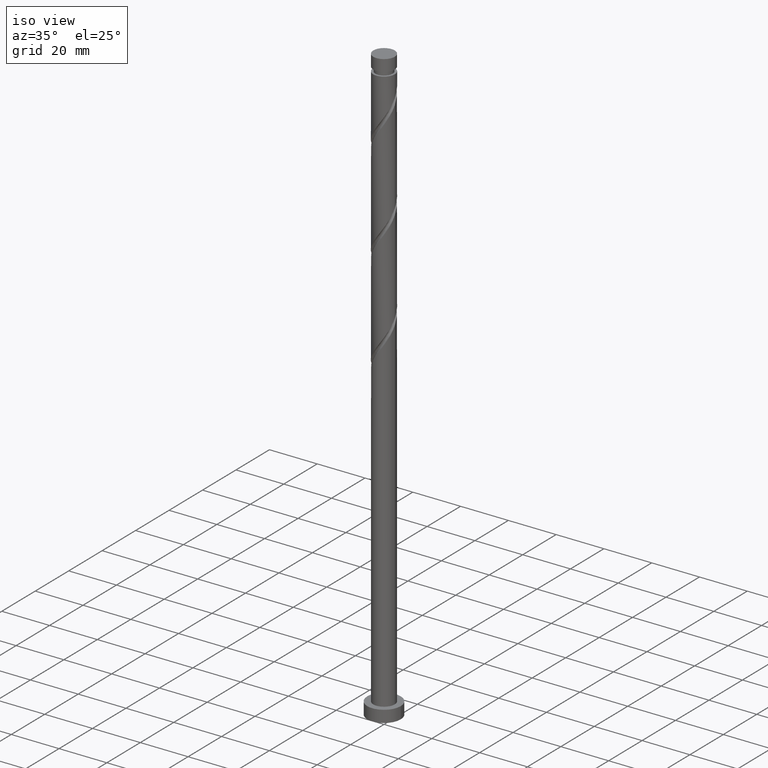
[diagram: clean part render]
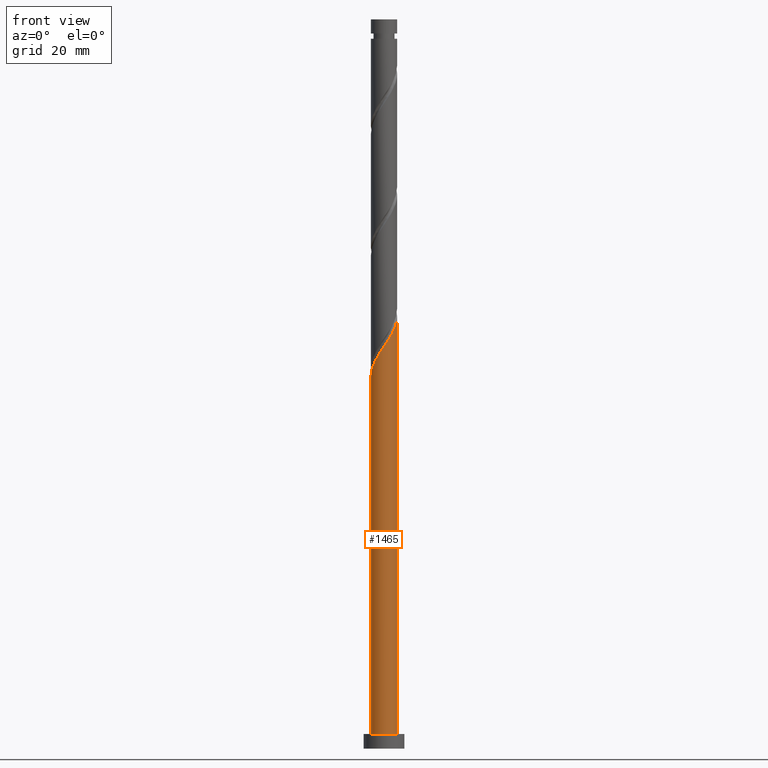
[diagram: tour spotlight — one face highlighted and labeled with its STEP entity id]
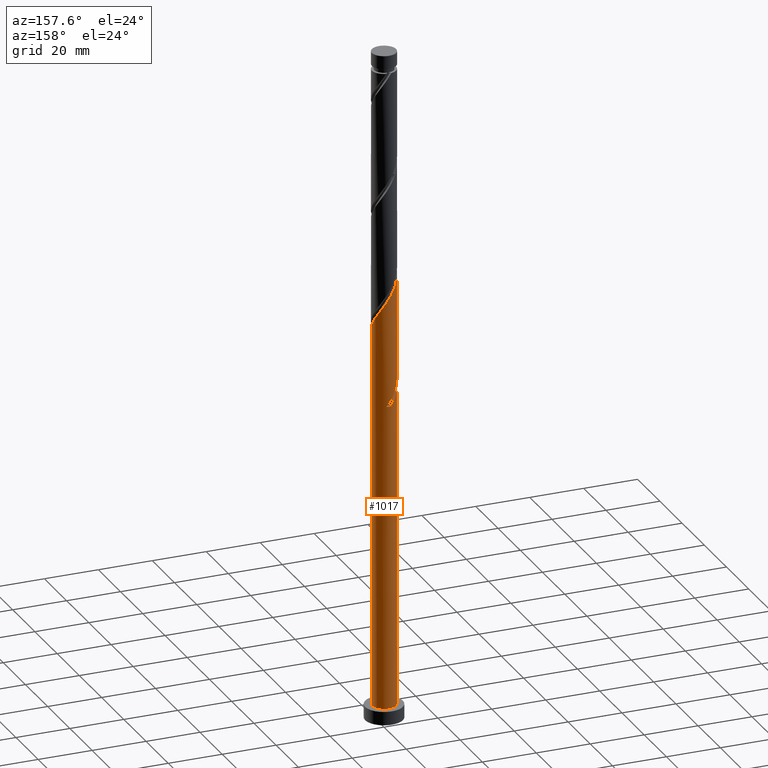
[diagram: tour spotlight — one face highlighted and labeled with its STEP entity id]
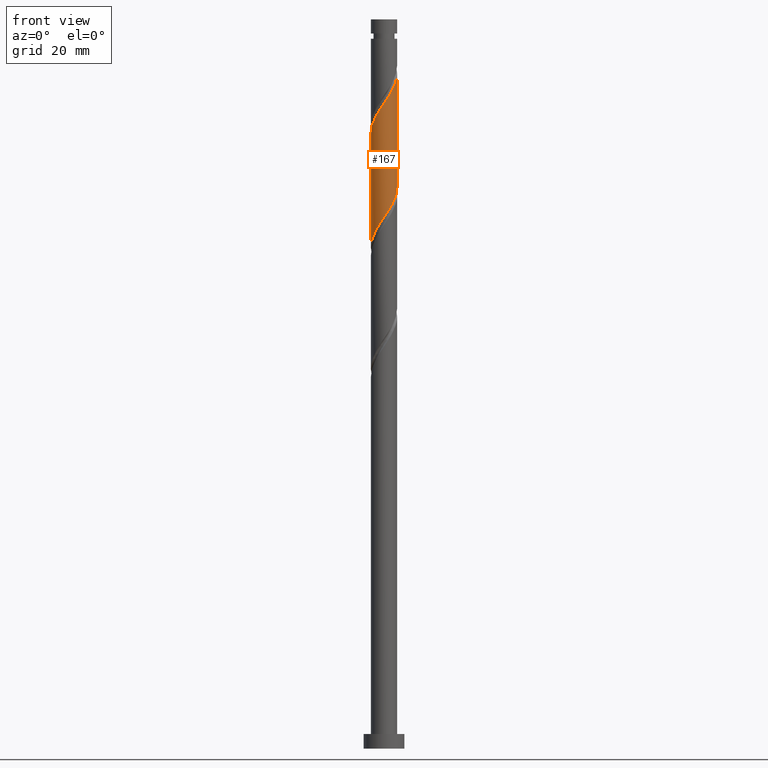
[diagram: tour spotlight — one face highlighted and labeled with its STEP entity id]
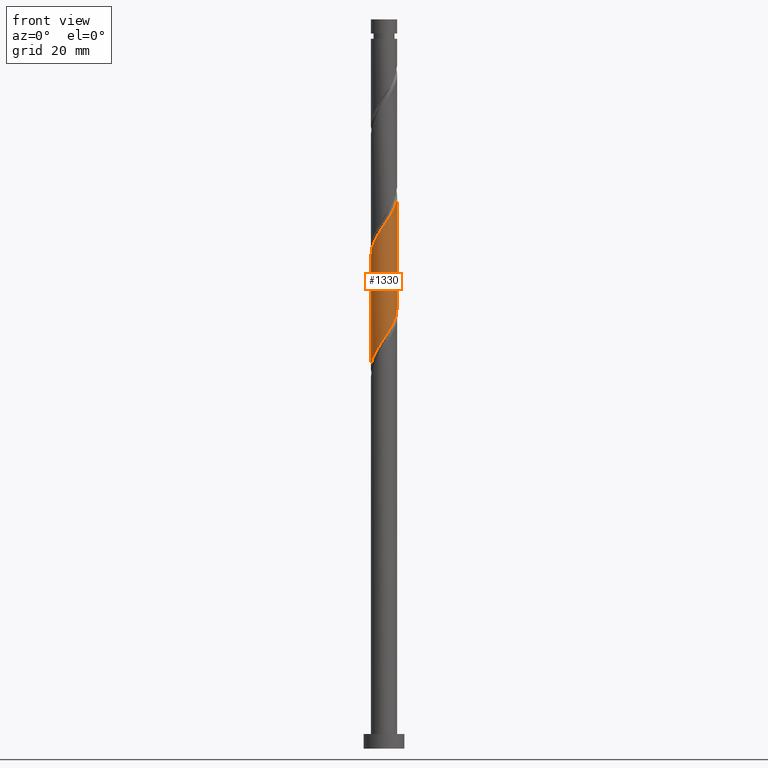
[diagram: tour spotlight — one face highlighted and labeled with its STEP entity id]
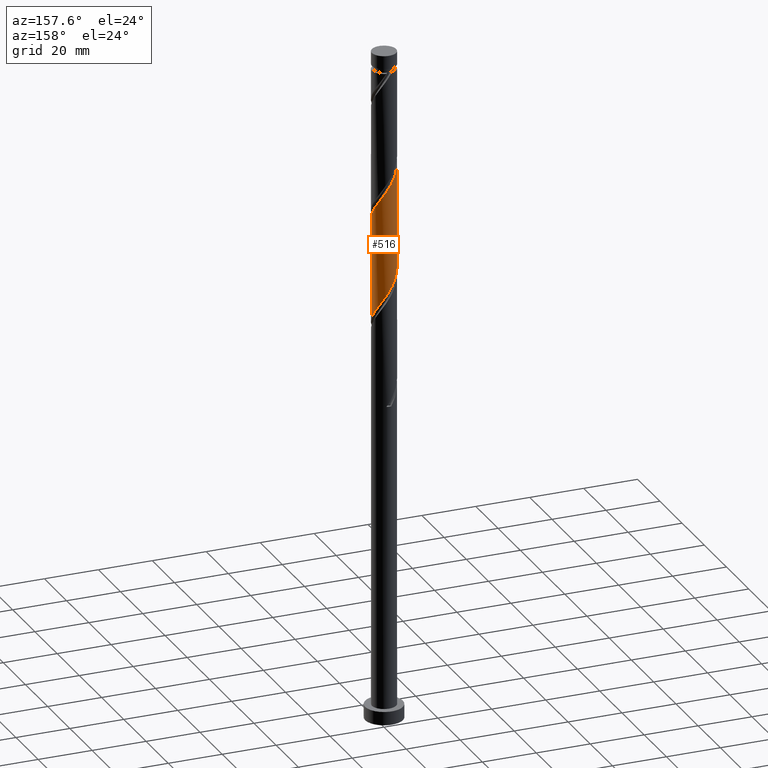
[diagram: tour spotlight — one face highlighted and labeled with its STEP entity id]
A machine part: a face-by-face anatomy tour. The part has 21 B-rep faces; the first image is the clean iso view, then the 5 largest visible faces are spotlighted one at a time (largest first), each with its STEP entity span.

Face 1 — front view, entity #1465. In plain terms, the highlighted cylindrical surface (edge-blend (fillet) strip) has radius 4.5 mm, axis along (-0, -0, -1).
Definition (entity closure, byte-faithful):
#18 = CARTESIAN_POINT ( 'NONE',  ( -4.500000000000007105, -1.839580439594256617E-15, 127.4452234887474020 ) ) ;
#27 = CARTESIAN_POINT ( 'NONE',  ( -3.514330150595356361, -2.863221154104486299, 131.9782735697674809 ) ) ;
#81 = ORIENTED_EDGE ( 'NONE', *, *, #409, .F. ) ;
#159 = DIRECTION ( 'NONE',  ( 1.000000000000000000, 0.000000000000000000, 0.000000000000000000 ) ) ;
#166 = CARTESIAN_POINT ( 'NONE',  ( -4.500000000000007994, -0.1789790865154533284, 127.7093944043803901 ) ) ;
#192 = VECTOR ( 'NONE', #1268, 1000.000000000000000 ) ;
#221 = CARTESIAN_POINT ( 'NONE',  ( -1.256513329241250254, -4.321015419254962353, 135.9846838261777577 ) ) ;
#245 = ORIENTED_EDGE ( 'NONE', *, *, #1542, .T. ) ;
#321 = EDGE_CURVE ( 'NONE', #623, #489, #932, .T. ) ;
#385 = CARTESIAN_POINT ( 'NONE',  ( 4.352751881241021970, -1.265742013621952600, 146.4013504928444434 ) ) ;
#409 = EDGE_CURVE ( 'NONE', #489, #1118, #651, .T. ) ;
#440 = CARTESIAN_POINT ( 'NONE',  ( -4.097423775950929326, -1.938986896543407168, 130.3757094672033929 ) ) ;
#489 = VERTEX_POINT ( 'NONE', #567 ) ;
#526 = CARTESIAN_POINT ( 'NONE',  ( -1.781179590981155192, -4.168447078873283473, 135.1834017748956853 ) ) ;
#532 = CARTESIAN_POINT ( 'NONE',  ( 0.8954886933959596007, -4.410000000000006359, 139.1898120313059621 ) ) ;
#541 = CIRCLE ( 'NONE', #1384, 4.500000000000000888 ) ;
#554 = CARTESIAN_POINT ( 'NONE',  ( -4.442390024977666663, -0.9020657684858256475, 128.7731453646392765 ) ) ;
#567 = CARTESIAN_POINT ( 'NONE',  ( 4.500000000000007105, 1.271254775329364443E-15, 148.2785568220807306 ) ) ;
#623 = VERTEX_POINT ( 'NONE', #1034 ) ;
#633 = VECTOR ( 'NONE', #1788, 1000.000000000000000 ) ;
#651 = LINE ( 'NONE', #660, #633 ) ;
#660 = CARTESIAN_POINT ( 'NONE',  ( 4.500000000000000888, 5.510910596163089556E-16, 250.0000000000000000 ) ) ;
#673 = CYLINDRICAL_SURFACE ( 'NONE', #1265, 4.500000000000000888 ) ;
#675 = CARTESIAN_POINT ( 'NONE',  ( 2.418739358510839654, -3.833829899758932402, 141.5936581851520941 ) ) ;
#678 = ORIENTED_EDGE ( 'NONE', *, *, #321, .F. ) ;
#688 = DIRECTION ( 'NONE',  ( -1.000000000000000000, 0.000000000000000000, 0.000000000000000000 ) ) ;
#760 = CARTESIAN_POINT ( 'NONE',  ( 0.000000000000000000, 0.000000000000000000, 5.000000000000000000 ) ) ;
#769 = CARTESIAN_POINT ( 'NONE',  ( 4.500000000000005329, -0.3656539734167192357, 147.7388560847323902 ) ) ;
#777 = CARTESIAN_POINT ( 'NONE',  ( 2.842345048184794720, -3.488706727006361419, 142.3949402364341381 ) ) ;
#796 = CARTESIAN_POINT ( 'NONE',  ( 4.440966297212226799, -0.7265110783912239745, 147.2026325441264589 ) ) ;
#808 = CARTESIAN_POINT ( 'NONE',  ( 1.924849498958484562, -4.067548943326846356, 140.7923761338700501 ) ) ;
#847 = CARTESIAN_POINT ( 'NONE',  ( -4.500000000000000888, 0.000000000000000000, 250.0000000000000000 ) ) ;
#867 = CARTESIAN_POINT ( 'NONE',  ( -3.120663290776442000, -3.242138279839466897, 132.7795556210495533 ) ) ;
#932 =( BOUNDED_CURVE ( )  B_SPLINE_CURVE ( 2, ( #18, #166, #1825, #554, #1710, #440, #1100, #27, #867, #1733, #1568, #526, #221, #1075, #1345, #1492, #532, #939, #808, #675, #777, #1216, #1642, #1353, #1368, #385, #796, #769, #1231 ),
 .UNSPECIFIED., .F., .T. ) 
 B_SPLINE_CURVE_WITH_KNOTS ( ( 3, 2, 2, 2, 2, 2, 2, 2, 2, 2, 2, 2, 2, 2, 3 ),
 ( 0.05452716259738325105, 0.05769230769230770939, 0.06730769230769229061, 0.07692307692307687184, 0.08653846153846156408, 0.09615384615384614531, 0.1057692307692307265, 0.1153846153846154188, 0.1250000000000000000, 0.1346153846153845812, 0.1442307692307692735, 0.1538461538461538547, 0.1634615384615384359, 0.1730769230769231282, 0.1795271625973830776 ),
 .UNSPECIFIED. ) 
 CURVE ( )  GEOMETRIC_REPRESENTATION_ITEM ( )  RATIONAL_B_SPLINE_CURVE ( ( 0.9061636035682857360, 0.9069090390690743853, 0.9090909090909310430, 0.9024626128164345840, 0.9090909090909310430, 0.9024626128164345840, 0.9090909090909310430, 0.9024626128164345840, 0.9090909090909310430, 0.9024626128164345840, 0.9090909090909310430, 0.9024626128164345840, 0.9090909090909310430, 0.9024626128164345840, 0.9090909090909310430, 0.9024626128164345840, 0.9090909090909310430, 0.9024626128164345840, 0.9090909090909310430, 0.9024626128164345840, 0.9090909090909310430, 0.9024626128164345840, 0.9090909090909310430, 0.9024626128164345840, 0.9090909090909310430, 0.9024626128164345840, 0.9090909090909310430, 0.9046444828382912418, 0.9061636035682857360 ) ) 
 REPRESENTATION_ITEM ( '' )  );
#939 = CARTESIAN_POINT ( 'NONE',  ( 1.430959639406128803, -4.301267986894758089, 139.9910940825879777 ) ) ;
#1034 = CARTESIAN_POINT ( 'NONE',  ( -4.500000000000007105, -1.839580439594256617E-15, 127.4452234887474020 ) ) ;
#1075 = CARTESIAN_POINT ( 'NONE',  ( -0.7318470675013459825, -4.473583759636639456, 136.7859658774597733 ) ) ;
#1098 = DIRECTION ( 'NONE',  ( -0.000000000000000000, -0.000000000000000000, -1.000000000000000000 ) ) ;
#1100 = CARTESIAN_POINT ( 'NONE',  ( -3.805876963273143510, -2.401104025323945734, 131.1769915184854369 ) ) ;
#1118 = VERTEX_POINT ( 'NONE', #1164 ) ;
#1164 = CARTESIAN_POINT ( 'NONE',  ( 4.500000000000000888, 5.510910596163089556E-16, 5.000000000000000000 ) ) ;
#1216 = CARTESIAN_POINT ( 'NONE',  ( 3.265950737858748010, -3.143583554253793544, 143.1962222877161821 ) ) ;
#1228 = CARTESIAN_POINT ( 'NONE',  ( 0.000000000000000000, 0.000000000000000000, 250.0000000000000000 ) ) ;
#1231 = CARTESIAN_POINT ( 'NONE',  ( 4.500000000000007105, 1.271254775329364443E-15, 148.2785568220807022 ) ) ;
#1234 = EDGE_LOOP ( 'NONE', ( #81, #678, #1603, #245 ) ) ;
#1265 = AXIS2_PLACEMENT_3D ( 'NONE', #1228, #1098, #688 ) ;
#1268 = DIRECTION ( 'NONE',  ( -0.000000000000000000, -0.000000000000000000, -1.000000000000000000 ) ) ;
#1293 = LINE ( 'NONE', #847, #192 ) ;
#1345 = CARTESIAN_POINT ( 'NONE',  ( -0.1859146600577789021, -4.496157886370947487, 137.5872479287418173 ) ) ;
#1353 = CARTESIAN_POINT ( 'NONE',  ( 3.923356931570217920, -2.270643559036720216, 144.7987863902802701 ) ) ;
#1364 = EDGE_CURVE ( 'NONE', #623, #1704, #1293, .T. ) ;
#1368 = CARTESIAN_POINT ( 'NONE',  ( 4.138054406405619723, -1.768192786329335187, 145.6000684415623709 ) ) ;
#1372 = FACE_OUTER_BOUND ( 'NONE', #1234, .T. ) ;
#1384 = AXIS2_PLACEMENT_3D ( 'NONE', #760, #1735, #159 ) ;
#1465 = ADVANCED_FACE ( 'NONE', ( #1372 ), #673, .T. ) ;
#1492 = CARTESIAN_POINT ( 'NONE',  ( 0.3600177473857882893, -4.518732013105255518, 138.3885299800238897 ) ) ;
#1542 = EDGE_CURVE ( 'NONE', #1704, #1118, #541, .T. ) ;
#1543 = CARTESIAN_POINT ( 'NONE',  ( -4.500000000000000888, 0.000000000000000000, 5.000000000000000000 ) ) ;
#1568 = CARTESIAN_POINT ( 'NONE',  ( -2.254088010969340861, -3.894751242223867038, 134.3821197236136129 ) ) ;
#1603 = ORIENTED_EDGE ( 'NONE', *, *, #1364, .T. ) ;
#1642 = CARTESIAN_POINT ( 'NONE',  ( 3.594653834714482521, -2.707113556645257546, 143.9975043389982829 ) ) ;
#1704 = VERTEX_POINT ( 'NONE', #1543 ) ;
#1710 = CARTESIAN_POINT ( 'NONE',  ( -4.269906900464299326, -1.420526332514616241, 129.5744274159213489 ) ) ;
#1733 = CARTESIAN_POINT ( 'NONE',  ( -2.726996430957525863, -3.621055405574447938, 133.5808376723315689 ) ) ;
#1735 = DIRECTION ( 'NONE',  ( 0.000000000000000000, 0.000000000000000000, 1.000000000000000000 ) ) ;
#1788 = DIRECTION ( 'NONE',  ( -0.000000000000000000, -0.000000000000000000, -1.000000000000000000 ) ) ;
#1825 = CARTESIAN_POINT ( 'NONE',  ( -4.485785369080550922, -0.3573928126626647606, 127.9718633133572752 ) ) ;

Face 2 — auxiliary view, entity #1017. In plain terms, the highlighted cylindrical surface (edge-blend (fillet) strip) has radius 4.5 mm, axis along (-0, -0, -1).
Definition (entity closure, byte-faithful):
#6 = EDGE_LOOP ( 'NONE', ( #887, #88, #1799, #325, #465, #375, #535, #838 ) ) ;
#20 = CARTESIAN_POINT ( 'NONE',  ( 0.000000000000000000, 0.000000000000000000, 5.000000000000000000 ) ) ;
#30 = EDGE_CURVE ( 'NONE', #127, #929, #65, .T. ) ;
#59 = CARTESIAN_POINT ( 'NONE',  ( -4.097423775950922220, 1.938986896543404725, 127.1705812620752027 ) ) ;
#62 = CARTESIAN_POINT ( 'NONE',  ( 0.1859146600577813724, 4.496157886370947487, 158.4205812620751885 ) ) ;
#65 = CIRCLE ( 'NONE', #906, 4.500000000000000888 ) ;
#88 = ORIENTED_EDGE ( 'NONE', *, *, #409, .T. ) ;
#127 = VERTEX_POINT ( 'NONE', #857 ) ;
#151 = DIRECTION ( 'NONE',  ( 0.000000000000000000, 1.000000000000000000, -2.467162276944791751E-14 ) ) ;
#152 = DIRECTION ( 'NONE',  ( -0.000000000000000000, -0.000000000000000000, -1.000000000000000000 ) ) ;
#168 = CARTESIAN_POINT ( 'NONE',  ( -0.8954886933959587125, 4.410000000000006359, 118.3564786979726051 ) ) ;
#192 = VECTOR ( 'NONE', #1268, 1000.000000000000000 ) ;
#194 = CARTESIAN_POINT ( 'NONE',  ( -1.430959639406130135, 4.301267986894758089, 119.1577607492546775 ) ) ;
#196 = CARTESIAN_POINT ( 'NONE',  ( 4.500000000000007105, 1.271254775329364443E-15, 148.2785568220807022 ) ) ;
#204 = CARTESIAN_POINT ( 'NONE',  ( -4.440966297212226799, 0.7265110783912233083, 168.0359658774598017 ) ) ;
#212 = CARTESIAN_POINT ( 'NONE',  ( 4.442390024977666663, 0.9020657684858252034, 149.6064786979726193 ) ) ;
#267 = CIRCLE ( 'NONE', #892, 4.500000000000000888 ) ;
#275 = DIRECTION ( 'NONE',  ( -0.000000000000000000, -0.000000000000000000, -1.000000000000000000 ) ) ;
#307 = CARTESIAN_POINT ( 'NONE',  ( -1.924849498958485672, 4.067548943326845468, 119.9590428005367073 ) ) ;
#325 = ORIENTED_EDGE ( 'NONE', *, *, #1364, .F. ) ;
#329 = CARTESIAN_POINT ( 'NONE',  ( -4.500000000000007105, -1.839580439594256617E-15, 169.1118901554140734 ) ) ;
#332 = CARTESIAN_POINT ( 'NONE',  ( -3.514330150595351476, 2.863221154104482302, 125.5680171595110437 ) ) ;
#334 = CARTESIAN_POINT ( 'NONE',  ( 4.485785369080551810, 0.3573928126626632062, 148.8051966466905753 ) ) ;
#356 =( BOUNDED_CURVE ( )  B_SPLINE_CURVE ( 2, ( #196, #359, #334, #212, #1031, #762, #1754, #631, #1619, #1332, #1778, #507, #622, #1182, #62, #1057, #640, #912, #1476, #370, #923, #1460, #488, #1593, #746, #480, #204, #1046, #798 ),
 .UNSPECIFIED., .F., .T. ) 
 B_SPLINE_CURVE_WITH_KNOTS ( ( 3, 2, 2, 2, 2, 2, 2, 2, 2, 2, 2, 2, 2, 2, 3 ),
 ( 0.1795271625973830776, 0.1826923076923077094, 0.1923076923076922906, 0.2019230769230768718, 0.2115384615384615641, 0.2211538461538461453, 0.2307692307692307265, 0.2403846153846154188, 0.2500000000000000000, 0.2596153846153845812, 0.2692307692307692735, 0.2788461538461538547, 0.2884615384615384359, 0.2980769230769231282, 0.3045271625973832164 ),
 .UNSPECIFIED. ) 
 CURVE ( )  GEOMETRIC_REPRESENTATION_ITEM ( )  RATIONAL_B_SPLINE_CURVE ( ( 0.9061636035682857360, 0.9069090390690743853, 0.9090909090909310430, 0.9024626128164345840, 0.9090909090909310430, 0.9024626128164345840, 0.9090909090909310430, 0.9024626128164345840, 0.9090909090909310430, 0.9024626128164345840, 0.9090909090909310430, 0.9024626128164345840, 0.9090909090909310430, 0.9024626128164345840, 0.9090909090909310430, 0.9024626128164345840, 0.9090909090909310430, 0.9024626128164345840, 0.9090909090909310430, 0.9024626128164345840, 0.9090909090909310430, 0.9024626128164345840, 0.9090909090909310430, 0.9024626128164345840, 0.9090909090909310430, 0.9024626128164345840, 0.9090909090909310430, 0.9046444828382911307, 0.9061636035682857360 ) ) 
 REPRESENTATION_ITEM ( '' )  );
#359 = CARTESIAN_POINT ( 'NONE',  ( 4.500000000000008882, 0.1789790865154426425, 148.5427277377136761 ) ) ;
#370 = CARTESIAN_POINT ( 'NONE',  ( -2.418739358510840987, 3.833829899758932402, 162.4269915184854369 ) ) ;
#375 = ORIENTED_EDGE ( 'NONE', *, *, #30, .T. ) ;
#391 = CARTESIAN_POINT ( 'NONE',  ( -4.500000000000007105, -1.839580439594256617E-15, 127.4452234887474020 ) ) ;
#409 = EDGE_CURVE ( 'NONE', #489, #1118, #651, .T. ) ;
#422 = DIRECTION ( 'NONE',  ( -1.369550182675367967E-29, -2.312964634635744160E-14, -1.000000000000000000 ) ) ;
#437 = VERTEX_POINT ( 'NONE', #329 ) ;
#452 = CARTESIAN_POINT ( 'NONE',  ( -3.120663290776435783, 3.242138279839463344, 124.7667351082290423 ) ) ;
#456 = LINE ( 'NONE', #1418, #1302 ) ;
#465 = ORIENTED_EDGE ( 'NONE', *, *, #1162, .F. ) ;
#478 = CARTESIAN_POINT ( 'NONE',  ( -1.781179590981151195, 4.168447078873278144, 122.3628889543828251 ) ) ;
#480 = CARTESIAN_POINT ( 'NONE',  ( -4.352751881241022858, 1.265742013621950157, 167.2346838261777009 ) ) ;
#488 = CARTESIAN_POINT ( 'NONE',  ( -3.594653834714482965, 2.707113556645256658, 164.8308376723315973 ) ) ;
#489 = VERTEX_POINT ( 'NONE', #567 ) ;
#507 = CARTESIAN_POINT ( 'NONE',  ( 1.781179590981155192, 4.168447078873283473, 156.0167351082290281 ) ) ;
#535 = ORIENTED_EDGE ( 'NONE', *, *, #1134, .F. ) ;
#538 = CARTESIAN_POINT ( 'NONE',  ( -4.500000000000006217, 0.3656539734167095212, 126.9055227513991042 ) ) ;
#567 = CARTESIAN_POINT ( 'NONE',  ( 4.500000000000007105, 1.271254775329364443E-15, 148.2785568220807306 ) ) ;
#593 = FACE_OUTER_BOUND ( 'NONE', #6, .T. ) ;
#600 = CARTESIAN_POINT ( 'NONE',  ( -4.500000000000000000, 3.604381186522106517E-15, 130.1010672405311368 ) ) ;
#601 = CARTESIAN_POINT ( 'NONE',  ( -2.726996430957519202, 3.621055405574443942, 123.9654530569469841 ) ) ;
#622 = CARTESIAN_POINT ( 'NONE',  ( 1.256513329241252697, 4.321015419254962353, 156.8180171595110437 ) ) ;
#623 = VERTEX_POINT ( 'NONE', #1034 ) ;
#631 = CARTESIAN_POINT ( 'NONE',  ( 3.514330150595358138, 2.863221154104484523, 152.8116069031007953 ) ) ;
#633 = VECTOR ( 'NONE', #1788, 1000.000000000000000 ) ;
#640 = CARTESIAN_POINT ( 'NONE',  ( -0.8954886933959591566, 4.410000000000006359, 160.0231453646393049 ) ) ;
#651 = LINE ( 'NONE', #660, #633 ) ;
#660 = CARTESIAN_POINT ( 'NONE',  ( 4.500000000000000888, 5.510910596163089556E-16, 250.0000000000000000 ) ) ;
#674 = CARTESIAN_POINT ( 'NONE',  ( -4.440966297212226799, 0.7265110783912233083, 126.3692992107931303 ) ) ;
#689 = CARTESIAN_POINT ( 'NONE',  ( -3.923356931570218809, 2.270643559036719772, 123.9654530569469841 ) ) ;
#700 = DIRECTION ( 'NONE',  ( -1.000000000000000000, 0.000000000000000000, 0.000000000000000000 ) ) ;
#715 = CARTESIAN_POINT ( 'NONE',  ( -2.418739358510840987, 3.833829899758932402, 120.7603248518187655 ) ) ;
#746 = CARTESIAN_POINT ( 'NONE',  ( -4.138054406405619723, 1.768192786329335187, 166.4334017748956853 ) ) ;
#762 = CARTESIAN_POINT ( 'NONE',  ( 4.097423775950930214, 1.938986896543405614, 151.2090428005367357 ) ) ;
#798 = CARTESIAN_POINT ( 'NONE',  ( -4.500000000000007105, -1.839580439594256617E-15, 169.1118901554140734 ) ) ;
#804 = CARTESIAN_POINT ( 'NONE',  ( -3.594653834714482965, 2.707113556645256658, 123.1641710056649401 ) ) ;
#838 = ORIENTED_EDGE ( 'NONE', *, *, #1604, .F. ) ;
#845 = CARTESIAN_POINT ( 'NONE',  ( 0.000000000000000000, 0.000000000000000000, 250.0000000000000000 ) ) ;
#847 = CARTESIAN_POINT ( 'NONE',  ( -4.500000000000000888, 0.000000000000000000, 250.0000000000000000 ) ) ;
#857 = CARTESIAN_POINT ( 'NONE',  ( -0.8954886933959588236, 4.410000000000006359, 118.3564786979726051 ) ) ;
#861 = VERTEX_POINT ( 'NONE', #600 ) ;
#872 = CARTESIAN_POINT ( 'NONE',  ( -2.842345048184795164, 3.488706727006361419, 121.5616069031008664 ) ) ;
#873 = DIRECTION ( 'NONE',  ( 1.000000000000000000, 0.000000000000000000, 0.000000000000000000 ) ) ;
#887 = ORIENTED_EDGE ( 'NONE', *, *, #1806, .F. ) ;
#892 = AXIS2_PLACEMENT_3D ( 'NONE', #20, #1279, #873 ) ;
#906 = AXIS2_PLACEMENT_3D ( 'NONE', #1399, #422, #151 ) ;
#912 = CARTESIAN_POINT ( 'NONE',  ( -1.430959639406130135, 4.301267986894758089, 160.8244274159213774 ) ) ;
#923 = CARTESIAN_POINT ( 'NONE',  ( -2.842345048184795164, 3.488706727006361419, 163.2282735697674809 ) ) ;
#929 = VERTEX_POINT ( 'NONE', #1634 ) ;
#1008 = CARTESIAN_POINT ( 'NONE',  ( -4.500000000000000000, 3.604381186522106517E-15, 130.1010672405311368 ) ) ;
#1017 = ADVANCED_FACE ( 'NONE', ( #593 ), #1721, .T. ) ;
#1028 = CARTESIAN_POINT ( 'NONE',  ( -4.499999999999999112, 0.1789790865154717026, 129.8368963248981913 ) ) ;
#1031 = CARTESIAN_POINT ( 'NONE',  ( 4.269906900464300215, 1.420526332514613799, 150.4077607492546917 ) ) ;
#1034 = CARTESIAN_POINT ( 'NONE',  ( -4.500000000000007105, -1.839580439594256617E-15, 127.4452234887474020 ) ) ;
#1037 = CARTESIAN_POINT ( 'NONE',  ( -1.256513329241247146, 4.321015419254954359, 121.5616069031008379 ) ) ;
#1046 = CARTESIAN_POINT ( 'NONE',  ( -4.500000000000006217, 0.3656539734167115197, 168.5721894180657330 ) ) ;
#1057 = CARTESIAN_POINT ( 'NONE',  ( -0.3600177473857879007, 4.518732013105255518, 159.2218633133572894 ) ) ;
#1118 = VERTEX_POINT ( 'NONE', #1164 ) ;
#1134 = EDGE_CURVE ( 'NONE', #861, #929, #1292, .T. ) ;
#1151 = CARTESIAN_POINT ( 'NONE',  ( 0.3600177473857904542, 4.518732013105247525, 119.1577607492546917 ) ) ;
#1162 = EDGE_CURVE ( 'NONE', #127, #623, #1416, .T. ) ;
#1164 = CARTESIAN_POINT ( 'NONE',  ( 4.500000000000000888, 5.510910596163089556E-16, 5.000000000000000000 ) ) ;
#1182 = CARTESIAN_POINT ( 'NONE',  ( 0.7318470675013464266, 4.473583759636639456, 157.6192992107930877 ) ) ;
#1229 = CARTESIAN_POINT ( 'NONE',  ( -4.138054406405619723, 1.768192786329335187, 124.7667351082290423 ) ) ;
#1247 = CARTESIAN_POINT ( 'NONE',  ( -4.352751881241022858, 1.265742013621950157, 125.5680171595110437 ) ) ;
#1268 = DIRECTION ( 'NONE',  ( -0.000000000000000000, -0.000000000000000000, -1.000000000000000000 ) ) ;
#1279 = DIRECTION ( 'NONE',  ( 0.000000000000000000, 0.000000000000000000, 1.000000000000000000 ) ) ;
#1291 = CARTESIAN_POINT ( 'NONE',  ( -2.254088010969334199, 3.894751242223860821, 123.1641710056649401 ) ) ;
#1292 =( BOUNDED_CURVE ( )  B_SPLINE_CURVE ( 2, ( #1008, #1028, #1415, #1582, #1591, #59, #1734, #332, #452, #601, #1291, #478, #1037, #1559, #1450, #1151, #1570 ),
 .UNSPECIFIED., .F., .T. ) 
 B_SPLINE_CURVE_WITH_KNOTS ( ( 3, 2, 2, 2, 2, 2, 2, 2, 3 ),
 ( 0.9295271625973835494, 0.9326923076923077094, 0.9423076923076922906, 0.9519230769230768718, 0.9615384615384615641, 0.9711538461538461453, 0.9807692307692307265, 0.9903846153846154188, 1.000000000000000000 ),
 .UNSPECIFIED. ) 
 CURVE ( )  GEOMETRIC_REPRESENTATION_ITEM ( )  RATIONAL_B_SPLINE_CURVE ( ( 0.9061636035682795187, 0.9069090390690681680, 0.9090909090909243817, 0.9024626128164281447, 0.9090909090909243817, 0.9024626128164281447, 0.9090909090909243817, 0.9024626128164281447, 0.9090909090909243817, 0.9024626128164281447, 0.9090909090909243817, 0.9024626128164281447, 0.9090909090909243817, 0.9024626128164281447, 0.9090909090909243817, 0.9024626128164281447, 0.9090909090909243817 ) ) 
 REPRESENTATION_ITEM ( '' )  );
#1293 = LINE ( 'NONE', #847, #192 ) ;
#1302 = VECTOR ( 'NONE', #152, 1000.000000000000000 ) ;
#1332 = CARTESIAN_POINT ( 'NONE',  ( 2.726996430957527640, 3.621055405574445274, 154.4141710056648833 ) ) ;
#1364 = EDGE_CURVE ( 'NONE', #623, #1704, #1293, .T. ) ;
#1382 = EDGE_CURVE ( 'NONE', #1118, #1704, #267, .T. ) ;
#1399 = CARTESIAN_POINT ( 'NONE',  ( 0.000000000000000000, 0.000000000000000000, 118.3564786979727188 ) ) ;
#1415 = CARTESIAN_POINT ( 'NONE',  ( -4.485785369080543816, 0.3573928126626663704, 129.5744274159213489 ) ) ;
#1416 =( BOUNDED_CURVE ( )  B_SPLINE_CURVE ( 2, ( #168, #194, #307, #715, #872, #1425, #804, #689, #1229, #1247, #674, #538, #391 ),
 .UNSPECIFIED., .F., .T. ) 
 B_SPLINE_CURVE_WITH_KNOTS ( ( 3, 2, 2, 2, 2, 2, 3 ),
 ( 0.000000000000000000, 0.009615384615384581224, 0.01923076923076927694, 0.02884615384615385469, 0.03846153846153844286, 0.04807692307692312816, 0.05452716259738325105 ),
 .UNSPECIFIED. ) 
 CURVE ( )  GEOMETRIC_REPRESENTATION_ITEM ( )  RATIONAL_B_SPLINE_CURVE ( ( 0.9090909090909310430, 0.9024626128164345840, 0.9090909090909310430, 0.9024626128164345840, 0.9090909090909310430, 0.9024626128164345840, 0.9090909090909310430, 0.9024626128164345840, 0.9090909090909310430, 0.9024626128164345840, 0.9090909090909310430, 0.9046444828382911307, 0.9061636035682857360 ) ) 
 REPRESENTATION_ITEM ( '' )  );
#1418 = CARTESIAN_POINT ( 'NONE',  ( -4.500000000000000888, 0.000000000000000000, 250.0000000000000000 ) ) ;
#1425 = CARTESIAN_POINT ( 'NONE',  ( -3.265950737858748010, 3.143583554253792212, 122.3628889543828535 ) ) ;
#1450 = CARTESIAN_POINT ( 'NONE',  ( -0.1859146600577761543, 4.496157886370940382, 119.9590428005367500 ) ) ;
#1460 = CARTESIAN_POINT ( 'NONE',  ( -3.265950737858748010, 3.143583554253792212, 164.0295556210495249 ) ) ;
#1476 = CARTESIAN_POINT ( 'NONE',  ( -1.924849498958485672, 4.067548943326845468, 161.6257094672034214 ) ) ;
#1543 = CARTESIAN_POINT ( 'NONE',  ( -4.500000000000000888, 0.000000000000000000, 5.000000000000000000 ) ) ;
#1559 = CARTESIAN_POINT ( 'NONE',  ( -0.7318470675013426519, 4.473583759636633239, 120.7603248518187371 ) ) ;
#1570 = CARTESIAN_POINT ( 'NONE',  ( 0.8954886933959605999, 4.410000000000001030, 118.3564786979726051 ) ) ;
#1582 = CARTESIAN_POINT ( 'NONE',  ( -4.442390024977660445, 0.9020657684858254255, 128.7731453646392765 ) ) ;
#1591 = CARTESIAN_POINT ( 'NONE',  ( -4.269906900464293109, 1.420526332514615797, 127.9718633133572467 ) ) ;
#1593 = CARTESIAN_POINT ( 'NONE',  ( -3.923356931570218809, 2.270643559036719772, 165.6321197236135561 ) ) ;
#1604 = EDGE_CURVE ( 'NONE', #437, #861, #456, .T. ) ;
#1619 = CARTESIAN_POINT ( 'NONE',  ( 3.120663290776442889, 3.242138279839466453, 153.6128889543828677 ) ) ;
#1634 = CARTESIAN_POINT ( 'NONE',  ( 0.8954886933959605999, 4.410000000000001030, 118.3564786979726051 ) ) ;
#1704 = VERTEX_POINT ( 'NONE', #1543 ) ;
#1721 = CYLINDRICAL_SURFACE ( 'NONE', #1787, 4.500000000000000888 ) ;
#1734 = CARTESIAN_POINT ( 'NONE',  ( -3.805876963273137292, 2.401104025323943514, 126.3692992107931303 ) ) ;
#1754 = CARTESIAN_POINT ( 'NONE',  ( 3.805876963273143510, 2.401104025323946622, 152.0103248518187513 ) ) ;
#1778 = CARTESIAN_POINT ( 'NONE',  ( 2.254088010969340861, 3.894751242223866150, 155.2154530569470126 ) ) ;
#1787 = AXIS2_PLACEMENT_3D ( 'NONE', #845, #275, #700 ) ;
#1788 = DIRECTION ( 'NONE',  ( -0.000000000000000000, -0.000000000000000000, -1.000000000000000000 ) ) ;
#1799 = ORIENTED_EDGE ( 'NONE', *, *, #1382, .T. ) ;
#1806 = EDGE_CURVE ( 'NONE', #489, #437, #356, .T. ) ;

Face 3 — front view, entity #167. In plain terms, the highlighted cylindrical surface (edge-blend (fillet) strip) has radius 4.5 mm, axis along (-0, -0, -1).
Definition (entity closure, byte-faithful):
#21 = LINE ( 'NONE', #1132, #471 ) ;
#37 = CARTESIAN_POINT ( 'NONE',  ( -1.256513329241250254, -4.321015419254962353, 219.3180171595111005 ) ) ;
#56 = CARTESIAN_POINT ( 'NONE',  ( 4.500000000000000000, -0.1789790865154677890, 192.3368963248981913 ) ) ;
#102 = CARTESIAN_POINT ( 'NONE',  ( 2.842345048184794720, -3.488706727006361419, 225.7282735697675093 ) ) ;
#106 = CARTESIAN_POINT ( 'NONE',  ( -1.430959639406130135, -4.301267986894750983, 180.0551966466905469 ) ) ;
#116 = CARTESIAN_POINT ( 'NONE',  ( -0.8954886933959599338, -4.409999999999998366, 180.8564786979725625 ) ) ;
#144 = CARTESIAN_POINT ( 'NONE',  ( -2.254088010969340861, -3.894751242223867038, 217.7154530569469841 ) ) ;
#157 = DIRECTION ( 'NONE',  ( -0.000000000000000000, -0.000000000000000000, -1.000000000000000000 ) ) ;
#167 = ADVANCED_FACE ( 'NONE', ( #727 ), #285, .T. ) ;
#175 = CARTESIAN_POINT ( 'NONE',  ( 1.430959639406128803, -4.301267986894758089, 223.3244274159213489 ) ) ;
#178 = EDGE_CURVE ( 'NONE', #1339, #1176, #21, .T. ) ;
#180 = AXIS2_PLACEMENT_3D ( 'NONE', #848, #157, #454 ) ;
#182 =( BOUNDED_CURVE ( )  B_SPLINE_CURVE ( 2, ( #1464, #56, #618, #1171, #210, #1747, #1319, #1580, #627, #1043, #1327, #1015, #317, #879, #1828, #1797, #116, #106, #1677, #1814, #1091, #401, #1208, #959, #242, #950, #1346, #259, #1068 ),
 .UNSPECIFIED., .F., .T. ) 
 B_SPLINE_CURVE_WITH_KNOTS ( ( 3, 2, 2, 2, 2, 2, 2, 2, 2, 2, 2, 2, 2, 2, 3 ),
 ( 0.5545271625973834384, 0.5576923076923077094, 0.5673076923076922906, 0.5769230769230768718, 0.5865384615384615641, 0.5961538461538461453, 0.6057692307692307265, 0.6153846153846154188, 0.6250000000000000000, 0.6346153846153845812, 0.6442307692307692735, 0.6538461538461538547, 0.6634615384615384359, 0.6730769230769231282, 0.6795271625973832164 ),
 .UNSPECIFIED. ) 
 CURVE ( )  GEOMETRIC_REPRESENTATION_ITEM ( )  RATIONAL_B_SPLINE_CURVE ( ( 0.9061636035682794077, 0.9069090390690679460, 0.9090909090909243817, 0.9024626128164281447, 0.9090909090909243817, 0.9024626128164281447, 0.9090909090909243817, 0.9024626128164281447, 0.9090909090909243817, 0.9024626128164281447, 0.9090909090909243817, 0.9024626128164281447, 0.9090909090909243817, 0.9024626128164281447, 0.9090909090909243817, 0.9024626128164281447, 0.9090909090909243817, 0.9024626128164281447, 0.9090909090909243817, 0.9024626128164281447, 0.9090909090909243817, 0.9024626128164281447, 0.9090909090909243817, 0.9024626128164281447, 0.9090909090909243817, 0.9024626128164281447, 0.9090909090909243817, 0.9046444828382846914, 0.9061636035682792967 ) ) 
 REPRESENTATION_ITEM ( '' )  );
#186 = CARTESIAN_POINT ( 'NONE',  ( -4.442390024977666663, -0.9020657684858256475, 212.1064786979726478 ) ) ;
#198 = ORIENTED_EDGE ( 'NONE', *, *, #576, .F. ) ;
#202 = CARTESIAN_POINT ( 'NONE',  ( 3.265950737858748010, -3.143583554253793544, 226.5295556210495249 ) ) ;
#210 = CARTESIAN_POINT ( 'NONE',  ( 4.269906900464292221, -1.420526332514617573, 190.4718633133572041 ) ) ;
#225 = CARTESIAN_POINT ( 'NONE',  ( 4.138054406405619723, -1.768192786329335187, 228.9334017748956853 ) ) ;
#242 = CARTESIAN_POINT ( 'NONE',  ( -4.138054406405614394, -1.768192786329330968, 174.4462222877161821 ) ) ;
#259 = CARTESIAN_POINT ( 'NONE',  ( -4.500000000000000000, -0.3656539734167093547, 172.3074346445461629 ) ) ;
#266 = CARTESIAN_POINT ( 'NONE',  ( -3.805876963273143510, -2.401104025323945734, 214.5103248518187229 ) ) ;
#279 = ORIENTED_EDGE ( 'NONE', *, *, #1670, .F. ) ;
#285 = CYLINDRICAL_SURFACE ( 'NONE', #180, 4.500000000000000888 ) ;
#304 = CARTESIAN_POINT ( 'NONE',  ( -4.485785369080550922, -0.3573928126626647606, 211.3051966466906038 ) ) ;
#317 = CARTESIAN_POINT ( 'NONE',  ( 1.256513329241246701, -4.321015419254954359, 184.0616069031008237 ) ) ;
#354 = CARTESIAN_POINT ( 'NONE',  ( 4.500000000000007105, -0.3656539734167051359, 231.0721894180657330 ) ) ;
#401 = CARTESIAN_POINT ( 'NONE',  ( -3.265950737858744013, -3.143583554253785994, 176.8500684415623709 ) ) ;
#450 = CARTESIAN_POINT ( 'NONE',  ( -0.1859146600577789021, -4.496157886370947487, 220.9205812620751601 ) ) ;
#454 = DIRECTION ( 'NONE',  ( -1.000000000000000000, 0.000000000000000000, 0.000000000000000000 ) ) ;
#471 = VECTOR ( 'NONE', #1294, 1000.000000000000000 ) ;
#475 = CARTESIAN_POINT ( 'NONE',  ( 4.440966297212226799, -0.7265110783912239745, 230.5359658774598017 ) ) ;
#484 = CARTESIAN_POINT ( 'NONE',  ( 3.923356931570217920, -2.270643559036720216, 228.1321197236136413 ) ) ;
#486 = CARTESIAN_POINT ( 'NONE',  ( 4.500000000000000000, -5.488829441716236904E-15, 192.6010672405311368 ) ) ;
#576 = EDGE_CURVE ( 'NONE', #1339, #1573, #1500, .T. ) ;
#618 = CARTESIAN_POINT ( 'NONE',  ( 4.485785369080544704, -0.3573928126626689794, 192.0744274159213489 ) ) ;
#627 = CARTESIAN_POINT ( 'NONE',  ( 3.120663290776435783, -3.242138279839463344, 187.2667351082290566 ) ) ;
#658 = CARTESIAN_POINT ( 'NONE',  ( 3.594653834714482521, -2.707113556645257546, 227.3308376723315973 ) ) ;
#693 = CARTESIAN_POINT ( 'NONE',  ( -1.781179590981155192, -4.168447078873283473, 218.5167351082289997 ) ) ;
#724 = CARTESIAN_POINT ( 'NONE',  ( -4.500000000000007105, 2.333126411192715844E-15, 210.7785568220807022 ) ) ;
#727 = FACE_OUTER_BOUND ( 'NONE', #1307, .T. ) ;
#729 = CARTESIAN_POINT ( 'NONE',  ( 4.500000000000000888, 5.510910596163089556E-16, 250.0000000000000000 ) ) ;
#759 = CARTESIAN_POINT ( 'NONE',  ( 4.500000000000007105, 3.365086169989493475E-15, 231.6118901554140450 ) ) ;
#848 = CARTESIAN_POINT ( 'NONE',  ( 0.000000000000000000, 0.000000000000000000, 250.0000000000000000 ) ) ;
#865 = CARTESIAN_POINT ( 'NONE',  ( -2.726996430957525863, -3.621055405574447938, 216.9141710056649686 ) ) ;
#875 = DIRECTION ( 'NONE',  ( -0.000000000000000000, -0.000000000000000000, -1.000000000000000000 ) ) ;
#879 = CARTESIAN_POINT ( 'NONE',  ( 0.7318470675013408755, -4.473583759636633239, 183.2603248518187229 ) ) ;
#908 = ORIENTED_EDGE ( 'NONE', *, *, #178, .T. ) ;
#909 = CARTESIAN_POINT ( 'NONE',  ( 1.924849498958484562, -4.067548943326846356, 224.1257094672034214 ) ) ;
#920 = EDGE_CURVE ( 'NONE', #1468, #1176, #182, .T. ) ;
#950 = CARTESIAN_POINT ( 'NONE',  ( -4.352751881241013976, -1.265742013621946827, 173.6449402364341665 ) ) ;
#959 = CARTESIAN_POINT ( 'NONE',  ( -3.923356931570212591, -2.270643559036713111, 175.2475043389982261 ) ) ;
#1004 = CARTESIAN_POINT ( 'NONE',  ( 0.3600177473857882893, -4.518732013105255518, 221.7218633133572041 ) ) ;
#1015 = CARTESIAN_POINT ( 'NONE',  ( 1.781179590981150751, -4.168447078873279033, 184.8628889543828677 ) ) ;
#1043 = CARTESIAN_POINT ( 'NONE',  ( 2.726996430957518314, -3.621055405574443942, 186.4654530569469273 ) ) ;
#1068 = CARTESIAN_POINT ( 'NONE',  ( -4.500000000000000000, 3.604381186522106517E-15, 171.7677339071978224 ) ) ;
#1091 = CARTESIAN_POINT ( 'NONE',  ( -2.842345048184791612, -3.488706727006355202, 177.6513504928444149 ) ) ;
#1120 = VECTOR ( 'NONE', #875, 1000.000000000000000 ) ;
#1132 = CARTESIAN_POINT ( 'NONE',  ( -4.500000000000000888, 0.000000000000000000, 250.0000000000000000 ) ) ;
#1160 = CARTESIAN_POINT ( 'NONE',  ( -4.097423775950929326, -1.938986896543407168, 213.7090428005367073 ) ) ;
#1171 = CARTESIAN_POINT ( 'NONE',  ( 4.442390024977660445, -0.9020657684858259806, 191.2731453646392765 ) ) ;
#1176 = VERTEX_POINT ( 'NONE', #1363 ) ;
#1208 = CARTESIAN_POINT ( 'NONE',  ( -3.594653834714478524, -2.707113556645249997, 176.0487863902803554 ) ) ;
#1250 = CARTESIAN_POINT ( 'NONE',  ( -0.7318470675013459825, -4.473583759636639456, 220.1192992107930877 ) ) ;
#1281 = LINE ( 'NONE', #729, #1120 ) ;
#1287 = CARTESIAN_POINT ( 'NONE',  ( -4.500000000000008882, -0.1789790865154324562, 211.0427277377136761 ) ) ;
#1294 = DIRECTION ( 'NONE',  ( -0.000000000000000000, -0.000000000000000000, -1.000000000000000000 ) ) ;
#1300 = CARTESIAN_POINT ( 'NONE',  ( -4.269906900464299326, -1.420526332514616241, 212.9077607492547202 ) ) ;
#1307 = EDGE_LOOP ( 'NONE', ( #279, #198, #908, #1636 ) ) ;
#1319 = CARTESIAN_POINT ( 'NONE',  ( 3.805876963273137292, -2.401104025323944846, 188.8692992107931445 ) ) ;
#1327 = CARTESIAN_POINT ( 'NONE',  ( 2.254088010969333311, -3.894751242223862153, 185.6641710056649117 ) ) ;
#1339 = VERTEX_POINT ( 'NONE', #1679 ) ;
#1346 = CARTESIAN_POINT ( 'NONE',  ( -4.440966297212221470, -0.7265110783912198666, 172.8436581851520657 ) ) ;
#1363 = CARTESIAN_POINT ( 'NONE',  ( -4.500000000000000000, 3.604381186522106517E-15, 171.7677339071978224 ) ) ;
#1400 = CARTESIAN_POINT ( 'NONE',  ( 4.500000000000007994, 3.365086169989493475E-15, 231.6118901554140450 ) ) ;
#1423 = CARTESIAN_POINT ( 'NONE',  ( 0.8954886933959596007, -4.410000000000006359, 222.5231453646392765 ) ) ;
#1464 = CARTESIAN_POINT ( 'NONE',  ( 4.500000000000000000, -5.488829441716236904E-15, 192.6010672405311368 ) ) ;
#1468 = VERTEX_POINT ( 'NONE', #486 ) ;
#1500 =( BOUNDED_CURVE ( )  B_SPLINE_CURVE ( 2, ( #724, #1287, #304, #186, #1300, #1160, #266, #1739, #1718, #865, #144, #693, #37, #1250, #450, #1004, #1423, #175, #909, #1628, #102, #202, #658, #484, #225, #1613, #475, #354, #759 ),
 .UNSPECIFIED., .F., .T. ) 
 B_SPLINE_CURVE_WITH_KNOTS ( ( 3, 2, 2, 2, 2, 2, 2, 2, 2, 2, 2, 2, 2, 2, 3 ),
 ( 0.5545271625973828833, 0.5576923076923077094, 0.5673076923076922906, 0.5769230769230768718, 0.5865384615384615641, 0.5961538461538461453, 0.6057692307692308376, 0.6153846153846154188, 0.6250000000000000000, 0.6346153846153845812, 0.6442307692307691624, 0.6538461538461538547, 0.6634615384615384359, 0.6730769230769231282, 0.6795271625973833274 ),
 .UNSPECIFIED. ) 
 CURVE ( )  GEOMETRIC_REPRESENTATION_ITEM ( )  RATIONAL_B_SPLINE_CURVE ( ( 0.9061636035682857360, 0.9069090390690742742, 0.9090909090909310430, 0.9024626128164345840, 0.9090909090909310430, 0.9024626128164345840, 0.9090909090909310430, 0.9024626128164345840, 0.9090909090909310430, 0.9024626128164345840, 0.9090909090909310430, 0.9024626128164345840, 0.9090909090909310430, 0.9024626128164345840, 0.9090909090909310430, 0.9024626128164345840, 0.9090909090909310430, 0.9024626128164345840, 0.9090909090909310430, 0.9024626128164345840, 0.9090909090909310430, 0.9024626128164345840, 0.9090909090909310430, 0.9024626128164345840, 0.9090909090909310430, 0.9024626128164345840, 0.9090909090909310430, 0.9046444828382911307, 0.9061636035682859580 ) ) 
 REPRESENTATION_ITEM ( '' )  );
#1573 = VERTEX_POINT ( 'NONE', #1400 ) ;
#1580 = CARTESIAN_POINT ( 'NONE',  ( 3.514330150595349256, -2.863221154104484079, 188.0680171595110721 ) ) ;
#1613 = CARTESIAN_POINT ( 'NONE',  ( 4.352751881241021970, -1.265742013621952600, 229.7346838261777293 ) ) ;
#1628 = CARTESIAN_POINT ( 'NONE',  ( 2.418739358510839654, -3.833829899758932402, 224.9269915184854369 ) ) ;
#1636 = ORIENTED_EDGE ( 'NONE', *, *, #920, .F. ) ;
#1670 = EDGE_CURVE ( 'NONE', #1573, #1468, #1281, .T. ) ;
#1677 = CARTESIAN_POINT ( 'NONE',  ( -1.924849498958485006, -4.067548943326837474, 179.2539145954085598 ) ) ;
#1679 = CARTESIAN_POINT ( 'NONE',  ( -4.500000000000007105, 2.333126411192715844E-15, 210.7785568220807022 ) ) ;
#1718 = CARTESIAN_POINT ( 'NONE',  ( -3.120663290776442000, -3.242138279839466897, 216.1128889543828677 ) ) ;
#1739 = CARTESIAN_POINT ( 'NONE',  ( -3.514330150595356361, -2.863221154104486299, 215.3116069031007669 ) ) ;
#1747 = CARTESIAN_POINT ( 'NONE',  ( 4.097423775950922220, -1.938986896543404059, 189.6705812620751885 ) ) ;
#1797 = CARTESIAN_POINT ( 'NONE',  ( -0.3600177473857912869, -4.518732013105247525, 181.6577607492547202 ) ) ;
#1814 = CARTESIAN_POINT ( 'NONE',  ( -2.418739358510839654, -3.833829899758923521, 178.4526325441264021 ) ) ;
#1828 = CARTESIAN_POINT ( 'NONE',  ( 0.1859146600577747388, -4.496157886370940382, 182.4590428005367073 ) ) ;

Face 4 — front view, entity #1330. In plain terms, the highlighted cylindrical surface (edge-blend (fillet) strip) has radius 4.5 mm, axis along (-0, -0, -1).
Definition (entity closure, byte-faithful):
#13 = CARTESIAN_POINT ( 'NONE',  ( 1.781179590981150751, -4.168447078873279033, 143.1962222877162105 ) ) ;
#24 = CARTESIAN_POINT ( 'NONE',  ( 1.924849498958484562, -4.067548943326846356, 182.4590428005367357 ) ) ;
#42 = CARTESIAN_POINT ( 'NONE',  ( 4.485785369080544704, -0.3573928126626689794, 150.4077607492546349 ) ) ;
#82 = CARTESIAN_POINT ( 'NONE',  ( -0.7318470675013459825, -4.473583759636639456, 178.4526325441264305 ) ) ;
#104 = VECTOR ( 'NONE', #1572, 1000.000000000000000 ) ;
#112 = CARTESIAN_POINT ( 'NONE',  ( 4.500000000000007105, 1.271254775329364443E-15, 189.9452234887474162 ) ) ;
#152 = DIRECTION ( 'NONE',  ( -0.000000000000000000, -0.000000000000000000, -1.000000000000000000 ) ) ;
#170 = CARTESIAN_POINT ( 'NONE',  ( -1.924849498958485006, -4.067548943326837474, 137.5872479287418173 ) ) ;
#189 = CARTESIAN_POINT ( 'NONE',  ( 0.7318470675013408755, -4.473583759636633239, 141.5936581851520373 ) ) ;
#215 = CARTESIAN_POINT ( 'NONE',  ( -2.254088010969340861, -3.894751242223867038, 176.0487863902803554 ) ) ;
#238 = CARTESIAN_POINT ( 'NONE',  ( 4.500000000000005329, -0.3656539734167207900, 189.4055227513990758 ) ) ;
#254 = CARTESIAN_POINT ( 'NONE',  ( 0.000000000000000000, 0.000000000000000000, 250.0000000000000000 ) ) ;
#261 = CARTESIAN_POINT ( 'NONE',  ( -4.500000000000007105, -1.839580439594256617E-15, 169.1118901554140734 ) ) ;
#287 = CARTESIAN_POINT ( 'NONE',  ( 4.499999999999999112, -0.1789790865154740340, 150.6702296582314773 ) ) ;
#309 = LINE ( 'NONE', #1712, #104 ) ;
#311 = CARTESIAN_POINT ( 'NONE',  ( -4.500000000000001776, -0.3656539734166905919, 130.6407679778794488 ) ) ;
#329 = CARTESIAN_POINT ( 'NONE',  ( -4.500000000000007105, -1.839580439594256617E-15, 169.1118901554140734 ) ) ;
#336 = CARTESIAN_POINT ( 'NONE',  ( 2.418739358510839654, -3.833829899758932402, 183.2603248518187513 ) ) ;
#353 = CARTESIAN_POINT ( 'NONE',  ( -3.805876963273143510, -2.401104025323945734, 172.8436581851521225 ) ) ;
#381 = CARTESIAN_POINT ( 'NONE',  ( 4.352751881241021970, -1.265742013621952600, 188.0680171595110437 ) ) ;
#403 = DIRECTION ( 'NONE',  ( -1.000000000000000000, 0.000000000000000000, 0.000000000000000000 ) ) ;
#413 =( BOUNDED_CURVE ( )  B_SPLINE_CURVE ( 2, ( #569, #287, #42, #445, #703, #605, #1011, #1019, #1702, #1116, #435, #13, #1692, #189, #580, #1125, #1439, #859, #170, #719, #1253, #850, #1584, #710, #885, #1153, #424, #311, #986 ),
 .UNSPECIFIED., .F., .T. ) 
 B_SPLINE_CURVE_WITH_KNOTS ( ( 3, 2, 2, 2, 2, 2, 2, 2, 2, 2, 2, 2, 2, 2, 3 ),
 ( 0.8045271625973835494, 0.8076923076923077094, 0.8173076923076922906, 0.8269230769230768718, 0.8365384615384615641, 0.8461538461538461453, 0.8557692307692307265, 0.8653846153846154188, 0.8750000000000000000, 0.8846153846153845812, 0.8942307692307692735, 0.9038461538461538547, 0.9134615384615384359, 0.9230769230769231282, 0.9295271625973835494 ),
 .UNSPECIFIED. ) 
 CURVE ( )  GEOMETRIC_REPRESENTATION_ITEM ( )  RATIONAL_B_SPLINE_CURVE ( ( 0.9061636035682795187, 0.9069090390690681680, 0.9090909090909243817, 0.9024626128164281447, 0.9090909090909243817, 0.9024626128164281447, 0.9090909090909243817, 0.9024626128164281447, 0.9090909090909243817, 0.9024626128164281447, 0.9090909090909243817, 0.9024626128164281447, 0.9090909090909243817, 0.9024626128164281447, 0.9090909090909243817, 0.9024626128164281447, 0.9090909090909243817, 0.9024626128164281447, 0.9090909090909243817, 0.9024626128164281447, 0.9090909090909243817, 0.9024626128164281447, 0.9090909090909243817, 0.9024626128164281447, 0.9090909090909243817, 0.9024626128164281447, 0.9090909090909243817, 0.9046444828382844694, 0.9061636035682795187 ) ) 
 REPRESENTATION_ITEM ( '' )  );
#424 = CARTESIAN_POINT ( 'NONE',  ( -4.440966297212221470, -0.7265110783912198666, 131.1769915184854369 ) ) ;
#435 = CARTESIAN_POINT ( 'NONE',  ( 2.254088010969333311, -3.894751242223862153, 143.9975043389982829 ) ) ;
#437 = VERTEX_POINT ( 'NONE', #329 ) ;
#445 = CARTESIAN_POINT ( 'NONE',  ( 4.442390024977660445, -0.9020657684858259806, 149.6064786979725909 ) ) ;
#456 = LINE ( 'NONE', #1418, #1302 ) ;
#562 = FACE_OUTER_BOUND ( 'NONE', #997, .T. ) ;
#569 = CARTESIAN_POINT ( 'NONE',  ( 4.500000000000000000, -5.488829441716236904E-15, 150.9344005738645080 ) ) ;
#580 = CARTESIAN_POINT ( 'NONE',  ( 0.1859146600577747388, -4.496157886370940382, 140.7923761338700785 ) ) ;
#600 = CARTESIAN_POINT ( 'NONE',  ( -4.500000000000000000, 3.604381186522106517E-15, 130.1010672405311368 ) ) ;
#605 = CARTESIAN_POINT ( 'NONE',  ( 4.097423775950922220, -1.938986896543404059, 148.0039145954085029 ) ) ;
#656 = CARTESIAN_POINT ( 'NONE',  ( 1.430959639406128803, -4.301267986894758089, 181.6577607492546633 ) ) ;
#703 = CARTESIAN_POINT ( 'NONE',  ( 4.269906900464292221, -1.420526332514617573, 148.8051966466906038 ) ) ;
#710 = CARTESIAN_POINT ( 'NONE',  ( -3.923356931570212591, -2.270643559036713111, 133.5808376723315689 ) ) ;
#719 = CARTESIAN_POINT ( 'NONE',  ( -2.418739358510839654, -3.833829899758923521, 136.7859658774598017 ) ) ;
#756 = CARTESIAN_POINT ( 'NONE',  ( -1.781179590981155192, -4.168447078873283473, 176.8500684415623994 ) ) ;
#772 = CARTESIAN_POINT ( 'NONE',  ( -1.256513329241250254, -4.321015419254962353, 177.6513504928444149 ) ) ;
#781 = CARTESIAN_POINT ( 'NONE',  ( 0.8954886933959596007, -4.410000000000006359, 180.8564786979726193 ) ) ;
#794 = CARTESIAN_POINT ( 'NONE',  ( 4.500000000000000000, -5.488829441716236904E-15, 150.9344005738644512 ) ) ;
#801 = CARTESIAN_POINT ( 'NONE',  ( -4.500000000000007994, -0.1789790865154513300, 169.3760610710471042 ) ) ;
#816 = DIRECTION ( 'NONE',  ( -0.000000000000000000, -0.000000000000000000, -1.000000000000000000 ) ) ;
#850 = CARTESIAN_POINT ( 'NONE',  ( -3.265950737858744013, -3.143583554253785994, 135.1834017748956569 ) ) ;
#859 = CARTESIAN_POINT ( 'NONE',  ( -1.430959639406130135, -4.301267986894750983, 138.3885299800238613 ) ) ;
#861 = VERTEX_POINT ( 'NONE', #600 ) ;
#885 = CARTESIAN_POINT ( 'NONE',  ( -4.138054406405614394, -1.768192786329330968, 132.7795556210495249 ) ) ;
#913 = CARTESIAN_POINT ( 'NONE',  ( -0.1859146600577789021, -4.496157886370947487, 179.2539145954085598 ) ) ;
#924 = ORIENTED_EDGE ( 'NONE', *, *, #1656, .F. ) ;
#972 = AXIS2_PLACEMENT_3D ( 'NONE', #254, #816, #403 ) ;
#986 = CARTESIAN_POINT ( 'NONE',  ( -4.500000000000000000, 3.604381186522106517E-15, 130.1010672405311368 ) ) ;
#989 = CARTESIAN_POINT ( 'NONE',  ( 3.594653834714482521, -2.707113556645257546, 185.6641710056649401 ) ) ;
#997 = EDGE_LOOP ( 'NONE', ( #1716, #1755, #1632, #924 ) ) ;
#1011 = CARTESIAN_POINT ( 'NONE',  ( 3.805876963273137292, -2.401104025323944846, 147.2026325441264305 ) ) ;
#1019 = CARTESIAN_POINT ( 'NONE',  ( 3.514330150595349256, -2.863221154104484079, 146.4013504928443865 ) ) ;
#1050 = CARTESIAN_POINT ( 'NONE',  ( 4.138054406405619723, -1.768192786329335187, 187.2667351082290281 ) ) ;
#1062 = CARTESIAN_POINT ( 'NONE',  ( 0.3600177473857882893, -4.518732013105255518, 180.0551966466905469 ) ) ;
#1077 = VERTEX_POINT ( 'NONE', #1406 ) ;
#1104 = CARTESIAN_POINT ( 'NONE',  ( -4.485785369080550922, -0.3573928126626647606, 169.6385299800239466 ) ) ;
#1116 = CARTESIAN_POINT ( 'NONE',  ( 2.726996430957518314, -3.621055405574443942, 144.7987863902802985 ) ) ;
#1125 = CARTESIAN_POINT ( 'NONE',  ( -0.3600177473857912869, -4.518732013105247525, 139.9910940825879777 ) ) ;
#1153 = CARTESIAN_POINT ( 'NONE',  ( -4.352751881241013976, -1.265742013621946827, 131.9782735697674809 ) ) ;
#1168 = VERTEX_POINT ( 'NONE', #794 ) ;
#1226 = CARTESIAN_POINT ( 'NONE',  ( -4.442390024977666663, -0.9020657684858256475, 170.4398120313059621 ) ) ;
#1253 = CARTESIAN_POINT ( 'NONE',  ( -2.842345048184791612, -3.488706727006355202, 135.9846838261777577 ) ) ;
#1261 = CARTESIAN_POINT ( 'NONE',  ( 3.265950737858748010, -3.143583554253793544, 184.8628889543828393 ) ) ;
#1302 = VECTOR ( 'NONE', #152, 1000.000000000000000 ) ;
#1330 = ADVANCED_FACE ( 'NONE', ( #562 ), #1648, .T. ) ;
#1348 = CARTESIAN_POINT ( 'NONE',  ( -3.514330150595356361, -2.863221154104486299, 173.6449402364341381 ) ) ;
#1391 = EDGE_CURVE ( 'NONE', #1077, #1168, #309, .T. ) ;
#1406 = CARTESIAN_POINT ( 'NONE',  ( 4.500000000000007105, 1.271254775329364443E-15, 189.9452234887474162 ) ) ;
#1418 = CARTESIAN_POINT ( 'NONE',  ( -4.500000000000000888, 0.000000000000000000, 250.0000000000000000 ) ) ;
#1438 = EDGE_CURVE ( 'NONE', #437, #1077, #1811, .T. ) ;
#1439 = CARTESIAN_POINT ( 'NONE',  ( -0.8954886933959599338, -4.409999999999998366, 139.1898120313059337 ) ) ;
#1454 = CARTESIAN_POINT ( 'NONE',  ( 2.842345048184794720, -3.488706727006361419, 184.0616069031008237 ) ) ;
#1487 = CARTESIAN_POINT ( 'NONE',  ( -3.120663290776442000, -3.242138279839466897, 174.4462222877162105 ) ) ;
#1489 = CARTESIAN_POINT ( 'NONE',  ( 4.440966297212226799, -0.7265110783912239745, 188.8692992107931445 ) ) ;
#1531 = CARTESIAN_POINT ( 'NONE',  ( -4.269906900464299326, -1.420526332514616241, 171.2410940825880061 ) ) ;
#1572 = DIRECTION ( 'NONE',  ( -0.000000000000000000, -0.000000000000000000, -1.000000000000000000 ) ) ;
#1584 = CARTESIAN_POINT ( 'NONE',  ( -3.594653834714478524, -2.707113556645249997, 134.3821197236136697 ) ) ;
#1604 = EDGE_CURVE ( 'NONE', #437, #861, #456, .T. ) ;
#1605 = CARTESIAN_POINT ( 'NONE',  ( -2.726996430957525863, -3.621055405574447938, 175.2475043389982829 ) ) ;
#1632 = ORIENTED_EDGE ( 'NONE', *, *, #1604, .T. ) ;
#1648 = CYLINDRICAL_SURFACE ( 'NONE', #972, 4.500000000000000888 ) ;
#1656 = EDGE_CURVE ( 'NONE', #1168, #861, #413, .T. ) ;
#1692 = CARTESIAN_POINT ( 'NONE',  ( 1.256513329241246701, -4.321015419254954359, 142.3949402364341381 ) ) ;
#1702 = CARTESIAN_POINT ( 'NONE',  ( 3.120663290776435783, -3.242138279839463344, 145.6000684415623709 ) ) ;
#1712 = CARTESIAN_POINT ( 'NONE',  ( 4.500000000000000888, 5.510910596163089556E-16, 250.0000000000000000 ) ) ;
#1716 = ORIENTED_EDGE ( 'NONE', *, *, #1391, .F. ) ;
#1755 = ORIENTED_EDGE ( 'NONE', *, *, #1438, .F. ) ;
#1760 = CARTESIAN_POINT ( 'NONE',  ( 3.923356931570217920, -2.270643559036720216, 186.4654530569469273 ) ) ;
#1809 = CARTESIAN_POINT ( 'NONE',  ( -4.097423775950929326, -1.938986896543407168, 172.0423761338700501 ) ) ;
#1811 =( BOUNDED_CURVE ( )  B_SPLINE_CURVE ( 2, ( #261, #801, #1104, #1226, #1531, #1809, #353, #1348, #1487, #1605, #215, #756, #772, #82, #913, #1062, #781, #656, #24, #336, #1454, #1261, #989, #1760, #1050, #381, #1489, #238, #112 ),
 .UNSPECIFIED., .F., .T. ) 
 B_SPLINE_CURVE_WITH_KNOTS ( ( 3, 2, 2, 2, 2, 2, 2, 2, 2, 2, 2, 2, 2, 2, 3 ),
 ( 0.3045271625973832164, 0.3076923076923077094, 0.3173076923076922906, 0.3269230769230768718, 0.3365384615384615641, 0.3461538461538461453, 0.3557692307692307265, 0.3653846153846154188, 0.3750000000000000000, 0.3846153846153845812, 0.3942307692307692735, 0.4038461538461538547, 0.4134615384615384359, 0.4230769230769231282, 0.4295271625973830498 ),
 .UNSPECIFIED. ) 
 CURVE ( )  GEOMETRIC_REPRESENTATION_ITEM ( )  RATIONAL_B_SPLINE_CURVE ( ( 0.9061636035682857360, 0.9069090390690743853, 0.9090909090909310430, 0.9024626128164345840, 0.9090909090909310430, 0.9024626128164345840, 0.9090909090909310430, 0.9024626128164345840, 0.9090909090909310430, 0.9024626128164345840, 0.9090909090909310430, 0.9024626128164345840, 0.9090909090909310430, 0.9024626128164345840, 0.9090909090909310430, 0.9024626128164345840, 0.9090909090909310430, 0.9024626128164345840, 0.9090909090909310430, 0.9024626128164345840, 0.9090909090909310430, 0.9024626128164345840, 0.9090909090909310430, 0.9024626128164345840, 0.9090909090909310430, 0.9024626128164345840, 0.9090909090909310430, 0.9046444828382913528, 0.9061636035682857360 ) ) 
 REPRESENTATION_ITEM ( '' )  );

Face 5 — auxiliary view, entity #516. In plain terms, the highlighted cylindrical surface (edge-blend (fillet) strip) has radius 4.5 mm, axis along (-0, -0, -1).
Definition (entity closure, byte-faithful):
#2 = FACE_OUTER_BOUND ( 'NONE', #1513, .T. ) ;
#21 = LINE ( 'NONE', #1132, #471 ) ;
#23 = CARTESIAN_POINT ( 'NONE',  ( 4.500000000000008882, 0.1789790865154410604, 190.2093944043803333 ) ) ;
#51 = CARTESIAN_POINT ( 'NONE',  ( 3.120663290776442889, 3.242138279839466453, 195.2795556210495818 ) ) ;
#68 = CARTESIAN_POINT ( 'NONE',  ( 4.138054406405615282, 1.768192786329330302, 153.6128889543828677 ) ) ;
#69 = CARTESIAN_POINT ( 'NONE',  ( -4.442390024977660445, 0.9020657684858254255, 170.4398120313059053 ) ) ;
#71 = CARTESIAN_POINT ( 'NONE',  ( -4.352751881241022858, 1.265742013621950157, 208.9013504928443865 ) ) ;
#77 = CARTESIAN_POINT ( 'NONE',  ( -4.500000000000000000, 0.1789790865154529398, 171.5035629915648485 ) ) ;
#80 = CARTESIAN_POINT ( 'NONE',  ( 2.254088010969340861, 3.894751242223866150, 196.8821197236136413 ) ) ;
#87 = CARTESIAN_POINT ( 'NONE',  ( -2.418739358510840987, 3.833829899758932402, 204.0936581851520657 ) ) ;
#104 = VECTOR ( 'NONE', #1572, 1000.000000000000000 ) ;
#134 = AXIS2_PLACEMENT_3D ( 'NONE', #1388, #878, #1826 ) ;
#161 = ORIENTED_EDGE ( 'NONE', *, *, #807, .F. ) ;
#178 = EDGE_CURVE ( 'NONE', #1339, #1176, #21, .T. ) ;
#222 = CARTESIAN_POINT ( 'NONE',  ( 1.781179590981155192, 4.168447078873283473, 197.6834017748956853 ) ) ;
#277 = CARTESIAN_POINT ( 'NONE',  ( 4.485785369080551810, 0.3573928126626632062, 190.4718633133572609 ) ) ;
#309 = LINE ( 'NONE', #1712, #104 ) ;
#318 = CARTESIAN_POINT ( 'NONE',  ( -0.7318470675013426519, 4.473583759636633239, 162.4269915184854085 ) ) ;
#343 = CARTESIAN_POINT ( 'NONE',  ( -4.500000000000002665, 0.3656539734167302269, 210.2388560847323902 ) ) ;
#348 = CARTESIAN_POINT ( 'NONE',  ( 3.923356931570213479, 2.270643559036710890, 154.4141710056648549 ) ) ;
#471 = VECTOR ( 'NONE', #1294, 1000.000000000000000 ) ;
#476 = CARTESIAN_POINT ( 'NONE',  ( 2.842345048184794276, 3.488706727006353869, 156.8180171595110721 ) ) ;
#477 = CARTESIAN_POINT ( 'NONE',  ( -4.485785369080543816, 0.3573928126626663704, 171.2410940825880630 ) ) ;
#485 = CARTESIAN_POINT ( 'NONE',  ( 3.594653834714478524, 2.707113556645249108, 155.2154530569469841 ) ) ;
#494 = CARTESIAN_POINT ( 'NONE',  ( -2.254088010969334199, 3.894751242223860821, 164.8308376723315973 ) ) ;
#502 = CARTESIAN_POINT ( 'NONE',  ( -1.256513329241247146, 4.321015419254954359, 163.2282735697675378 ) ) ;
#516 = ADVANCED_FACE ( 'NONE', ( #2 ), #965, .T. ) ;
#588 = CARTESIAN_POINT ( 'NONE',  ( 4.269906900464300215, 1.420526332514613799, 192.0744274159213489 ) ) ;
#614 = CARTESIAN_POINT ( 'NONE',  ( -0.8954886933959591566, 4.410000000000006359, 201.6898120313059906 ) ) ;
#637 = CARTESIAN_POINT ( 'NONE',  ( 4.500000000000000000, -5.488829441716236904E-15, 150.9344005738645080 ) ) ;
#638 = CARTESIAN_POINT ( 'NONE',  ( -4.097423775950922220, 1.938986896543404725, 168.8372479287417889 ) ) ;
#641 = ORIENTED_EDGE ( 'NONE', *, *, #1729, .F. ) ;
#644 = CARTESIAN_POINT ( 'NONE',  ( -4.269906900464293109, 1.420526332514615797, 169.6385299800238897 ) ) ;
#734 = CARTESIAN_POINT ( 'NONE',  ( 4.500000000000001776, 0.3656539734166895927, 151.4741013112127916 ) ) ;
#738 = CARTESIAN_POINT ( 'NONE',  ( 2.726996430957527640, 3.621055405574445274, 196.0808376723315405 ) ) ;
#744 = CARTESIAN_POINT ( 'NONE',  ( 3.265950737858744457, 3.143583554253785994, 156.0167351082289997 ) ) ;
#770 = CARTESIAN_POINT ( 'NONE',  ( 4.097423775950930214, 1.938986896543405614, 192.8757094672034214 ) ) ;
#794 = CARTESIAN_POINT ( 'NONE',  ( 4.500000000000000000, -5.488829441716236904E-15, 150.9344005738644512 ) ) ;
#807 = EDGE_CURVE ( 'NONE', #1176, #1168, #1537, .T. ) ;
#837 = CARTESIAN_POINT ( 'NONE',  ( 4.442390024977666663, 0.9020657684858252034, 191.2731453646393334 ) ) ;
#878 = DIRECTION ( 'NONE',  ( -0.000000000000000000, -0.000000000000000000, -1.000000000000000000 ) ) ;
#890 = CARTESIAN_POINT ( 'NONE',  ( 0.8954886933959602668, 4.409999999999998366, 160.0231453646393049 ) ) ;
#893 = CARTESIAN_POINT ( 'NONE',  ( 3.805876963273143510, 2.401104025323946622, 193.6769915184854369 ) ) ;
#897 = CARTESIAN_POINT ( 'NONE',  ( 2.418739358510839654, 3.833829899758923521, 157.6192992107930877 ) ) ;
#907 = CARTESIAN_POINT ( 'NONE',  ( -3.265950737858748010, 3.143583554253792212, 205.6962222877161821 ) ) ;
#965 = CYLINDRICAL_SURFACE ( 'NONE', #134, 4.500000000000000888 ) ;
#975 = CARTESIAN_POINT ( 'NONE',  ( 4.500000000000007105, 1.271254775329364443E-15, 189.9452234887474162 ) ) ;
#1026 = CARTESIAN_POINT ( 'NONE',  ( -3.120663290776435783, 3.242138279839463344, 166.4334017748957137 ) ) ;
#1036 = CARTESIAN_POINT ( 'NONE',  ( 1.924849498958487226, 4.067548943326836586, 158.4205812620751885 ) ) ;
#1040 = CARTESIAN_POINT ( 'NONE',  ( 3.514330150595358138, 2.863221154104484523, 194.4782735697673957 ) ) ;
#1077 = VERTEX_POINT ( 'NONE', #1406 ) ;
#1108 =( BOUNDED_CURVE ( )  B_SPLINE_CURVE ( 2, ( #975, #23, #277, #837, #588, #770, #893, #1040, #51, #738, #80, #222, #1338, #1769, #1322, #1452, #614, #1166, #1601, #87, #1764, #907, #1313, #1610, #1742, #71, #1484, #343, #1625 ),
 .UNSPECIFIED., .F., .T. ) 
 B_SPLINE_CURVE_WITH_KNOTS ( ( 3, 2, 2, 2, 2, 2, 2, 2, 2, 2, 2, 2, 2, 2, 3 ),
 ( 0.4295271625973830498, 0.4326923076923077094, 0.4423076923076922906, 0.4519230769230768718, 0.4615384615384615641, 0.4711538461538461453, 0.4807692307692307265, 0.4903846153846154188, 0.5000000000000000000, 0.5096153846153845812, 0.5192307692307691624, 0.5288461538461538547, 0.5384615384615384359, 0.5480769230769231282, 0.5545271625973828833 ),
 .UNSPECIFIED. ) 
 CURVE ( )  GEOMETRIC_REPRESENTATION_ITEM ( )  RATIONAL_B_SPLINE_CURVE ( ( 0.9061636035682857360, 0.9069090390690742742, 0.9090909090909310430, 0.9024626128164345840, 0.9090909090909310430, 0.9024626128164345840, 0.9090909090909310430, 0.9024626128164345840, 0.9090909090909310430, 0.9024626128164345840, 0.9090909090909310430, 0.9024626128164345840, 0.9090909090909310430, 0.9024626128164345840, 0.9090909090909310430, 0.9024626128164345840, 0.9090909090909310430, 0.9024626128164345840, 0.9090909090909310430, 0.9024626128164345840, 0.9090909090909310430, 0.9024626128164345840, 0.9090909090909310430, 0.9024626128164345840, 0.9090909090909310430, 0.9024626128164345840, 0.9090909090909310430, 0.9046444828382913528, 0.9061636035682857360 ) ) 
 REPRESENTATION_ITEM ( '' )  );
#1132 = CARTESIAN_POINT ( 'NONE',  ( -4.500000000000000888, 0.000000000000000000, 250.0000000000000000 ) ) ;
#1161 = CARTESIAN_POINT ( 'NONE',  ( 4.440966297212221470, 0.7265110783912205328, 152.0103248518187797 ) ) ;
#1163 = CARTESIAN_POINT ( 'NONE',  ( -4.500000000000000000, 3.604381186522106517E-15, 171.7677339071978224 ) ) ;
#1166 = CARTESIAN_POINT ( 'NONE',  ( -1.430959639406130135, 4.301267986894758089, 202.4910940825880061 ) ) ;
#1168 = VERTEX_POINT ( 'NONE', #794 ) ;
#1172 = CARTESIAN_POINT ( 'NONE',  ( 1.430959639406130801, 4.301267986894750983, 159.2218633133572609 ) ) ;
#1176 = VERTEX_POINT ( 'NONE', #1363 ) ;
#1187 = CARTESIAN_POINT ( 'NONE',  ( 4.352751881241014864, 1.265742013621944828, 152.8116069031008237 ) ) ;
#1188 = CARTESIAN_POINT ( 'NONE',  ( -2.726996430957519202, 3.621055405574443942, 165.6321197236136413 ) ) ;
#1201 = ORIENTED_EDGE ( 'NONE', *, *, #178, .F. ) ;
#1294 = DIRECTION ( 'NONE',  ( -0.000000000000000000, -0.000000000000000000, -1.000000000000000000 ) ) ;
#1313 = CARTESIAN_POINT ( 'NONE',  ( -3.594653834714482965, 2.707113556645256658, 206.4975043389982545 ) ) ;
#1322 = CARTESIAN_POINT ( 'NONE',  ( 0.1859146600577813724, 4.496157886370947487, 200.0872479287418173 ) ) ;
#1338 = CARTESIAN_POINT ( 'NONE',  ( 1.256513329241252697, 4.321015419254962353, 198.4846838261777862 ) ) ;
#1339 = VERTEX_POINT ( 'NONE', #1679 ) ;
#1363 = CARTESIAN_POINT ( 'NONE',  ( -4.500000000000000000, 3.604381186522106517E-15, 171.7677339071978224 ) ) ;
#1375 = ORIENTED_EDGE ( 'NONE', *, *, #1391, .T. ) ;
#1388 = CARTESIAN_POINT ( 'NONE',  ( 0.000000000000000000, 0.000000000000000000, 250.0000000000000000 ) ) ;
#1391 = EDGE_CURVE ( 'NONE', #1077, #1168, #309, .T. ) ;
#1406 = CARTESIAN_POINT ( 'NONE',  ( 4.500000000000007105, 1.271254775329364443E-15, 189.9452234887474162 ) ) ;
#1434 = CARTESIAN_POINT ( 'NONE',  ( -3.514330150595351476, 2.863221154104482302, 167.2346838261777293 ) ) ;
#1448 = CARTESIAN_POINT ( 'NONE',  ( 0.3600177473857904542, 4.518732013105247525, 160.8244274159213489 ) ) ;
#1452 = CARTESIAN_POINT ( 'NONE',  ( -0.3600177473857879007, 4.518732013105255518, 200.8885299800238613 ) ) ;
#1484 = CARTESIAN_POINT ( 'NONE',  ( -4.440966297212226799, 0.7265110783912233083, 209.7026325441265158 ) ) ;
#1513 = EDGE_LOOP ( 'NONE', ( #641, #1375, #161, #1201 ) ) ;
#1537 =( BOUNDED_CURVE ( )  B_SPLINE_CURVE ( 2, ( #1163, #77, #477, #69, #644, #638, #1761, #1434, #1026, #1188, #494, #1615, #502, #318, #1590, #1448, #890, #1172, #1036, #897, #476, #744, #485, #348, #68, #1187, #1161, #734, #637 ),
 .UNSPECIFIED., .F., .T. ) 
 B_SPLINE_CURVE_WITH_KNOTS ( ( 3, 2, 2, 2, 2, 2, 2, 2, 2, 2, 2, 2, 2, 2, 3 ),
 ( 0.6795271625973832164, 0.6826923076923077094, 0.6923076923076922906, 0.7019230769230768718, 0.7115384615384615641, 0.7211538461538461453, 0.7307692307692307265, 0.7403846153846154188, 0.7500000000000000000, 0.7596153846153845812, 0.7692307692307692735, 0.7788461538461538547, 0.7884615384615384359, 0.7980769230769231282, 0.8045271625973835494 ),
 .UNSPECIFIED. ) 
 CURVE ( )  GEOMETRIC_REPRESENTATION_ITEM ( )  RATIONAL_B_SPLINE_CURVE ( ( 0.9061636035682792967, 0.9069090390690678349, 0.9090909090909243817, 0.9024626128164281447, 0.9090909090909243817, 0.9024626128164281447, 0.9090909090909243817, 0.9024626128164281447, 0.9090909090909243817, 0.9024626128164281447, 0.9090909090909243817, 0.9024626128164281447, 0.9090909090909243817, 0.9024626128164281447, 0.9090909090909243817, 0.9024626128164281447, 0.9090909090909243817, 0.9024626128164281447, 0.9090909090909243817, 0.9024626128164281447, 0.9090909090909243817, 0.9024626128164281447, 0.9090909090909243817, 0.9024626128164281447, 0.9090909090909243817, 0.9024626128164281447, 0.9090909090909243817, 0.9046444828382844694, 0.9061636035682795187 ) ) 
 REPRESENTATION_ITEM ( '' )  );
#1572 = DIRECTION ( 'NONE',  ( -0.000000000000000000, -0.000000000000000000, -1.000000000000000000 ) ) ;
#1590 = CARTESIAN_POINT ( 'NONE',  ( -0.1859146600577761543, 4.496157886370940382, 161.6257094672033929 ) ) ;
#1601 = CARTESIAN_POINT ( 'NONE',  ( -1.924849498958485672, 4.067548943326845468, 203.2923761338700785 ) ) ;
#1610 = CARTESIAN_POINT ( 'NONE',  ( -3.923356931570218809, 2.270643559036719772, 207.2987863902803269 ) ) ;
#1615 = CARTESIAN_POINT ( 'NONE',  ( -1.781179590981151195, 4.168447078873278144, 164.0295556210494965 ) ) ;
#1625 = CARTESIAN_POINT ( 'NONE',  ( -4.500000000000007105, 2.333126411192715844E-15, 210.7785568220807022 ) ) ;
#1679 = CARTESIAN_POINT ( 'NONE',  ( -4.500000000000007105, 2.333126411192715844E-15, 210.7785568220807022 ) ) ;
#1712 = CARTESIAN_POINT ( 'NONE',  ( 4.500000000000000888, 5.510910596163089556E-16, 250.0000000000000000 ) ) ;
#1729 = EDGE_CURVE ( 'NONE', #1077, #1339, #1108, .T. ) ;
#1742 = CARTESIAN_POINT ( 'NONE',  ( -4.138054406405619723, 1.768192786329335187, 208.1000684415623994 ) ) ;
#1761 = CARTESIAN_POINT ( 'NONE',  ( -3.805876963273137292, 2.401104025323943514, 168.0359658774597733 ) ) ;
#1764 = CARTESIAN_POINT ( 'NONE',  ( -2.842345048184795164, 3.488706727006361419, 204.8949402364341381 ) ) ;
#1769 = CARTESIAN_POINT ( 'NONE',  ( 0.7318470675013464266, 4.473583759636639456, 199.2859658774597449 ) ) ;
#1826 = DIRECTION ( 'NONE',  ( -1.000000000000000000, 0.000000000000000000, 0.000000000000000000 ) ) ;